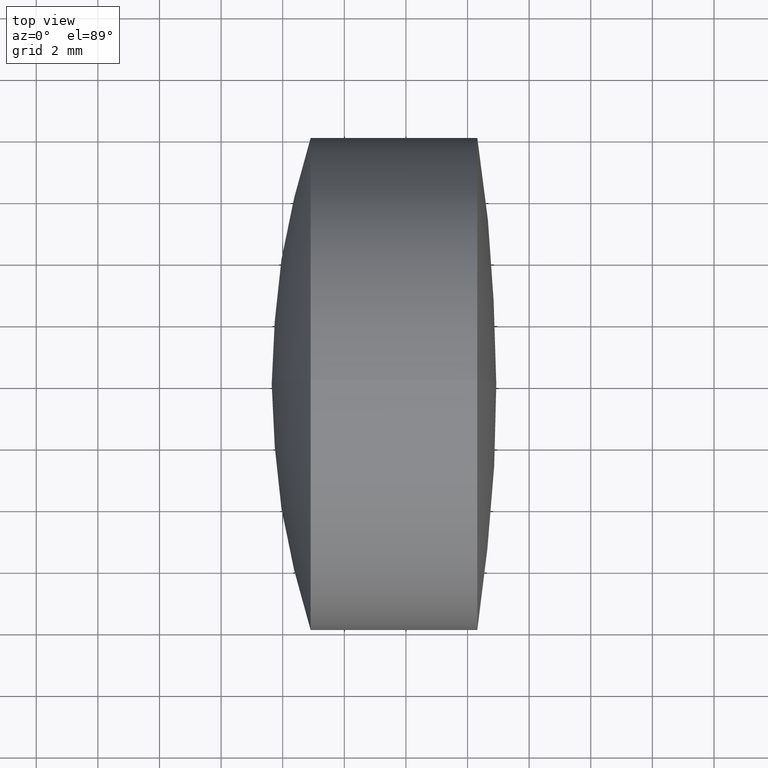
[diagram: clean part render]
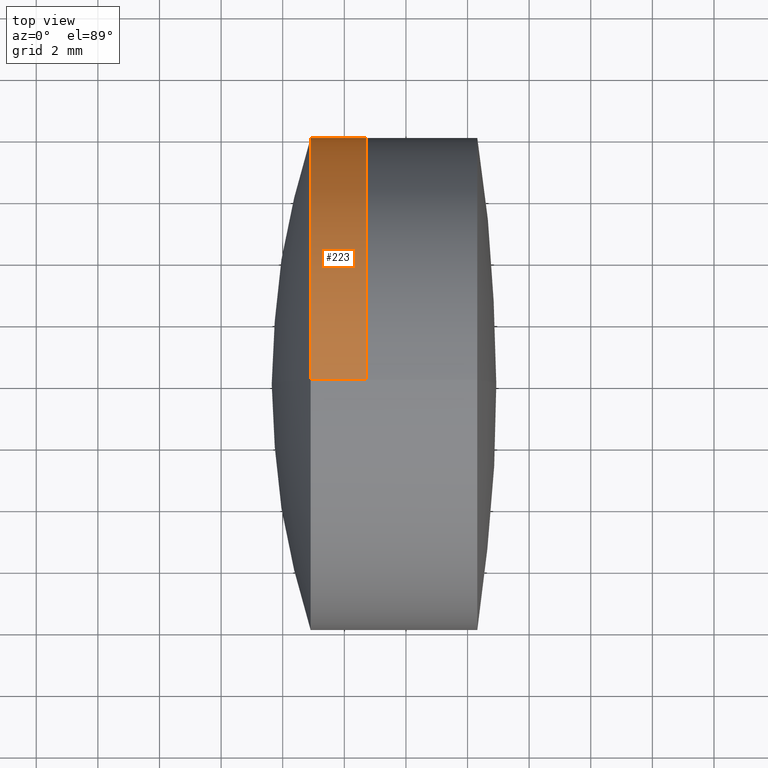
[diagram: same view with one face highlighted and labeled with its STEP entity id]
A machine part, top view. The second image highlights one B-rep face of the part: STEP entity #223.
In plain terms, the highlighted cylindrical surface (partial cylindrical patch) has radius 8 mm, axis along (-1, -0, -0).
Its self-contained STEP definition (entity closure, byte-faithful):
#3 = LINE ( 'NONE', #210, #97 ) ;
#27 = CARTESIAN_POINT ( 'NONE',  ( 22.70377877512568100, 9.797174393178825700E-016, -8.000000000000000000 ) ) ;
#35 = AXIS2_PLACEMENT_3D ( 'NONE', #308, #114, #149 ) ;
#37 = VECTOR ( 'NONE', #109, 1000.000000000000000 ) ;
#66 = CARTESIAN_POINT ( 'NONE',  ( -9.702612178336682500, 0.0000000000000000000, 0.0000000000000000000 ) ) ;
#68 = VERTEX_POINT ( 'NONE', #260 ) ;
#92 = CARTESIAN_POINT ( 'NONE',  ( 20.90665728463440900, 0.0000000000000000000, 7.999999999999996400 ) ) ;
#97 = VECTOR ( 'NONE', #112, 1000.000000000000000 ) ;
#101 = ORIENTED_EDGE ( 'NONE', *, *, #346, .F. ) ;
#109 = DIRECTION ( 'NONE',  ( -1.000000000000000000, -0.0000000000000000000, -0.0000000000000000000 ) ) ;
#112 = DIRECTION ( 'NONE',  ( -1.000000000000000000, -0.0000000000000000000, -0.0000000000000000000 ) ) ;
#114 = DIRECTION ( 'NONE',  ( -1.000000000000000000, -0.0000000000000000000, -0.0000000000000000000 ) ) ;
#149 = DIRECTION ( 'NONE',  ( 0.0000000000000000000, 0.0000000000000000000, 1.000000000000000000 ) ) ;
#157 = EDGE_CURVE ( 'NONE', #68, #201, #3, .T. ) ;
#166 = ORIENTED_EDGE ( 'NONE', *, *, #265, .T. ) ;
#197 = CARTESIAN_POINT ( 'NONE',  ( 22.70377877512568100, 0.0000000000000000000, 0.0000000000000000000 ) ) ;
#201 = VERTEX_POINT ( 'NONE', #92 ) ;
#205 = VERTEX_POINT ( 'NONE', #27 ) ;
#206 = CARTESIAN_POINT ( 'NONE',  ( -9.702612178336682500, 9.797174393178825700E-016, -8.000000000000000000 ) ) ;
#209 = DIRECTION ( 'NONE',  ( 0.0000000000000000000, 0.0000000000000000000, 1.000000000000000000 ) ) ;
#210 = CARTESIAN_POINT ( 'NONE',  ( -9.702612178336682500, 0.0000000000000000000, 8.000000000000000000 ) ) ;
#219 = DIRECTION ( 'NONE',  ( 0.0000000000000000000, 0.0000000000000000000, 1.000000000000000000 ) ) ;
#223 = ADVANCED_FACE ( 'NONE', ( #274 ), #238, .T. ) ;
#224 = VERTEX_POINT ( 'NONE', #275 ) ;
#230 = AXIS2_PLACEMENT_3D ( 'NONE', #197, #251, #209 ) ;
#238 = CYLINDRICAL_SURFACE ( 'NONE', #323, 8.000000000000000000 ) ;
#246 = DIRECTION ( 'NONE',  ( -1.000000000000000000, -0.0000000000000000000, -0.0000000000000000000 ) ) ;
#251 = DIRECTION ( 'NONE',  ( -1.000000000000000000, -0.0000000000000000000, -0.0000000000000000000 ) ) ;
#258 = ORIENTED_EDGE ( 'NONE', *, *, #273, .T. ) ;
#260 = CARTESIAN_POINT ( 'NONE',  ( 22.70377877512568100, 0.0000000000000000000, 8.000000000000000000 ) ) ;
#261 = LINE ( 'NONE', #206, #37 ) ;
#265 = EDGE_CURVE ( 'NONE', #205, #224, #261, .T. ) ;
#273 = EDGE_CURVE ( 'NONE', #68, #205, #322, .T. ) ;
#274 = FACE_OUTER_BOUND ( 'NONE', #293, .T. ) ;
#275 = CARTESIAN_POINT ( 'NONE',  ( 20.90665728463440900, 9.797174393178823700E-016, -7.999999999999996400 ) ) ;
#293 = EDGE_LOOP ( 'NONE', ( #258, #166, #101, #314 ) ) ;
#308 = CARTESIAN_POINT ( 'NONE',  ( 20.90665728463440900, 0.0000000000000000000, 0.0000000000000000000 ) ) ;
#314 = ORIENTED_EDGE ( 'NONE', *, *, #157, .F. ) ;
#322 = CIRCLE ( 'NONE', #230, 8.000000000000000000 ) ;
#323 = AXIS2_PLACEMENT_3D ( 'NONE', #66, #246, #219 ) ;
#332 = CIRCLE ( 'NONE', #35, 8.000000000000000000 ) ;
#346 = EDGE_CURVE ( 'NONE', #201, #224, #332, .T. ) ;